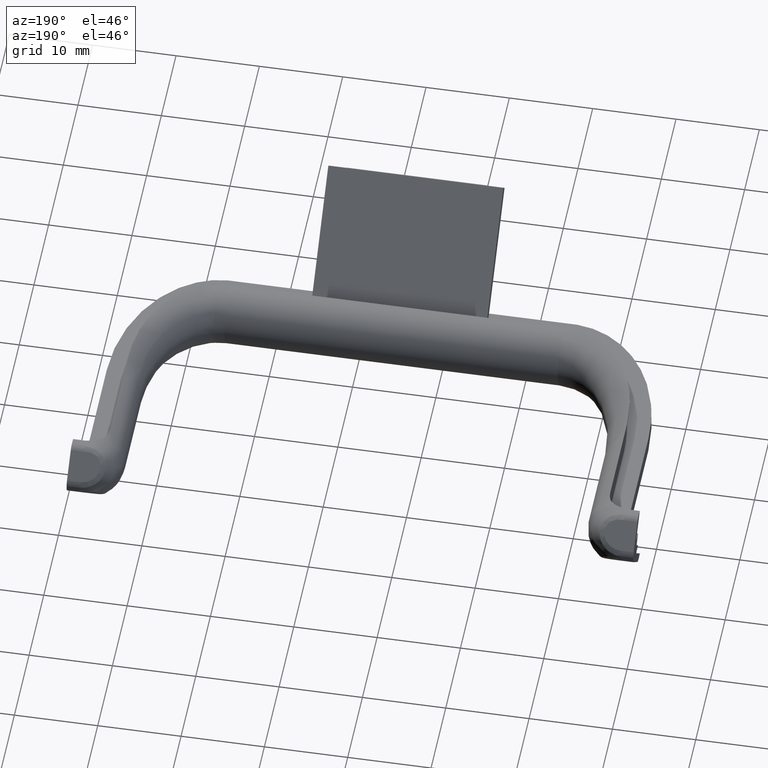
[diagram: clean part render]
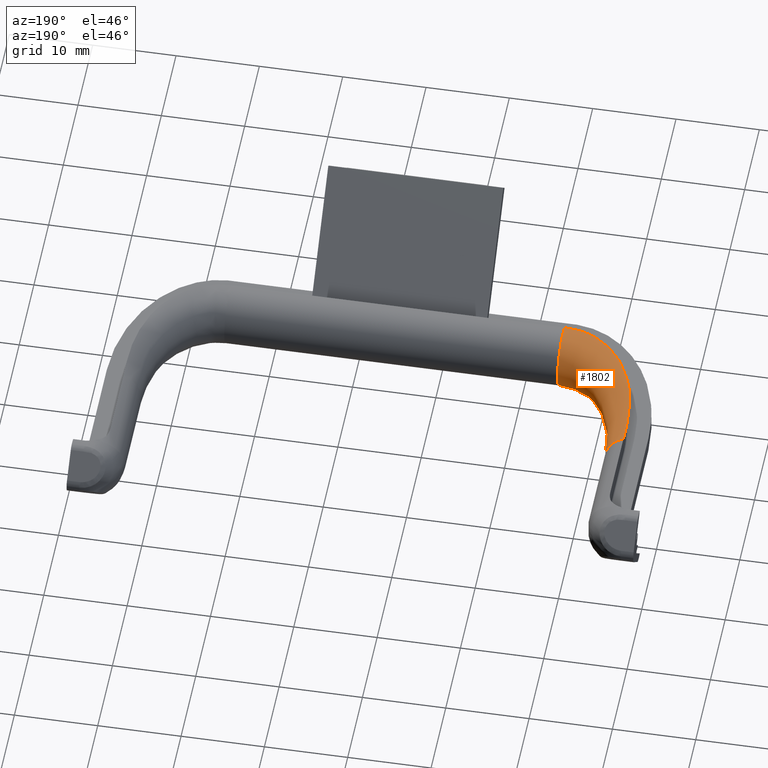
[diagram: same view with one face highlighted and labeled with its STEP entity id]
A machine part, auxiliary view. The second image highlights one B-rep face of the part: STEP entity #1802.
In plain terms, the highlighted face is a freeform B-spline surface patch.
Its self-contained STEP definition (entity closure, byte-faithful):
#25=B_SPLINE_CURVE_WITH_KNOTS('',3,(#3183,#3184,#3185,#3186,#3187,#3188,
#3189,#3190,#3191,#3192),.UNSPECIFIED.,.F.,.F.,(4,2,2,2,4),(-2.20345509162317,
-1.83863532768083,-1.48197378239805,-0.838537074408302,-0.24585927184166),
 .UNSPECIFIED.);
#27=B_SPLINE_CURVE_WITH_KNOTS('',3,(#3220,#3221,#3222,#3223),
 .UNSPECIFIED.,.F.,.F.,(4,4),(-0.262200994091899,0.),.UNSPECIFIED.);
#44=B_SPLINE_CURVE_WITH_KNOTS('',3,(#3621,#3622,#3623,#3624),
 .UNSPECIFIED.,.F.,.F.,(4,4),(-0.910281312693803,-0.698614414613447),
 .UNSPECIFIED.);
#46=B_SPLINE_CURVE_WITH_KNOTS('',3,(#3652,#3653,#3654,#3655,#3656,#3657,
#3658,#3659,#3660,#3661,#3662,#3663),.UNSPECIFIED.,.F.,.F.,(4,2,2,2,2,4),
(-1.73368814125414,-1.54589514440079,-1.12157386066874,-0.65030867246576,
-0.29982790780457,-9.08036690283609E-9),.UNSPECIFIED.);
#51=B_SPLINE_CURVE_WITH_KNOTS('',3,(#3788,#3789,#3790,#3791),
 .UNSPECIFIED.,.F.,.F.,(4,4),(-0.135563845027865,-8.71576399210524E-33),
 .UNSPECIFIED.);
#52=B_SPLINE_CURVE_WITH_KNOTS('',3,(#3794,#3795,#3796,#3797),
 .UNSPECIFIED.,.F.,.F.,(4,4),(-0.135346658001722,-8.71576399210524E-33),
 .UNSPECIFIED.);
#67=B_SPLINE_SURFACE_WITH_KNOTS('',3,3,((#3727,#3728,#3729,#3730,#3731,
#3732),(#3733,#3734,#3735,#3736,#3737,#3738),(#3739,#3740,#3741,#3742,#3743,
#3744),(#3745,#3746,#3747,#3748,#3749,#3750),(#3751,#3752,#3753,#3754,#3755,
#3756),(#3757,#3758,#3759,#3760,#3761,#3762),(#3763,#3764,#3765,#3766,#3767,
#3768),(#3769,#3770,#3771,#3772,#3773,#3774),(#3775,#3776,#3777,#3778,#3779,
#3780),(#3781,#3782,#3783,#3784,#3785,#3786)),.UNSPECIFIED.,.F.,.F.,.F.,
(4,1,1,1,1,1,1,4),(4,1,1,4),(-3.68894012902673,-3.16194868202291,-2.63495723501909,
-2.10796578801527,-1.58097434101145,-1.05398289400764,-0.526991447003818,
0.),(-1.5707963267949,-0.897597901025658,-0.448798950512829,-8.71576399210524E-33),
 .UNSPECIFIED.);
#209=FACE_OUTER_BOUND('',#313,.T.);
#313=EDGE_LOOP('',(#1542,#1543,#1544,#1545,#1546,#1547,#1548,#1549));
#712=CIRCLE('',#1989,3.7);
#713=CIRCLE('',#1990,3.7);
#825=VERTEX_POINT('',#3180);
#826=VERTEX_POINT('',#3182);
#828=VERTEX_POINT('',#3218);
#855=VERTEX_POINT('',#3618);
#856=VERTEX_POINT('',#3620);
#858=VERTEX_POINT('',#3629);
#864=VERTEX_POINT('',#3787);
#865=VERTEX_POINT('',#3792);
#1028=EDGE_CURVE('',#826,#825,#25,.T.);
#1032=EDGE_CURVE('',#825,#828,#27,.T.);
#1088=EDGE_CURVE('',#856,#855,#44,.T.);
#1092=EDGE_CURVE('',#855,#858,#46,.T.);
#1102=EDGE_CURVE('',#856,#828,#712,.T.);
#1103=EDGE_CURVE('',#858,#864,#51,.T.);
#1104=EDGE_CURVE('',#864,#865,#713,.T.);
#1105=EDGE_CURVE('',#826,#865,#52,.T.);
#1542=ORIENTED_EDGE('',*,*,#1088,.T.);
#1543=ORIENTED_EDGE('',*,*,#1092,.T.);
#1544=ORIENTED_EDGE('',*,*,#1103,.T.);
#1545=ORIENTED_EDGE('',*,*,#1104,.T.);
#1546=ORIENTED_EDGE('',*,*,#1105,.F.);
#1547=ORIENTED_EDGE('',*,*,#1028,.T.);
#1548=ORIENTED_EDGE('',*,*,#1032,.T.);
#1549=ORIENTED_EDGE('',*,*,#1102,.F.);
#1802=ADVANCED_FACE('',(#209),#67,.T.);
#1989=AXIS2_PLACEMENT_3D('',#3726,#2394,#2395);
#1990=AXIS2_PLACEMENT_3D('',#3793,#2396,#2397);
#2394=DIRECTION('center_axis',(0.,1.,-2.77555756156289E-16));
#2395=DIRECTION('ref_axis',(-0.270270270270257,2.67226378121049E-16,0.962784493543619));
#2396=DIRECTION('center_axis',(-1.,-3.86673217053726E-15,-2.77555756156289E-16));
#2397=DIRECTION('ref_axis',(7.77836370672753E-16,-0.270270270270257,0.962784493543619));
#3180=CARTESIAN_POINT('',(3.99999999999991,17.3542978045051,-3.44469206871838));
#3182=CARTESIAN_POINT('',(12.1778834393138,3.33130042737426,-3.5623026276111));
#3183=CARTESIAN_POINT('Ctrl Pts',(12.1778834400721,3.33130043045418,-3.56230262743489));
#3184=CARTESIAN_POINT('Ctrl Pts',(11.1986335254465,3.57323218997184,-3.57700630128459));
#3185=CARTESIAN_POINT('Ctrl Pts',(10.2833942419711,4.00183379716354,-3.6019456250735));
#3186=CARTESIAN_POINT('Ctrl Pts',(8.64057337531357,5.13983239742807,-3.65015910262434));
#3187=CARTESIAN_POINT('Ctrl Pts',(7.92621542084954,5.83055043952677,-3.67240558031309));
#3188=CARTESIAN_POINT('Ctrl Pts',(6.19399891204482,7.99918089738518,-3.70965557539282));
#3189=CARTESIAN_POINT('Ctrl Pts',(5.34212444434008,9.72595935080157,-3.70371660033781));
#3190=CARTESIAN_POINT('Ctrl Pts',(4.26137101362648,13.4567023109593,-3.61369490081654));
#3191=CARTESIAN_POINT('Ctrl Pts',(3.9999999999999,15.3931109063672,-3.53867528593425));
#3192=CARTESIAN_POINT('Ctrl Pts',(3.99999999999991,17.3542978045051,-3.44469206871839));
#3218=CARTESIAN_POINT('',(3.99999999999992,19.7989898732234,-3.38230690505755));
#3220=CARTESIAN_POINT('Ctrl Pts',(3.99999999999991,17.3542978045051,-3.44469206871838));
#3221=CARTESIAN_POINT('Ctrl Pts',(3.99999999999992,18.1227334682475,-3.40786740097739));
#3222=CARTESIAN_POINT('Ctrl Pts',(3.99999999999992,18.9249865595838,-3.38230690505755));
#3223=CARTESIAN_POINT('Ctrl Pts',(3.99999999999992,19.7989898732234,-3.38230690505755));
#3618=CARTESIAN_POINT('',(3.99999999999991,17.3542978045051,3.44469206871838));
#3620=CARTESIAN_POINT('',(3.99999999999992,19.7989898732234,3.38230690505755));
#3621=CARTESIAN_POINT('Ctrl Pts',(3.99999999999992,19.7989898732234,3.38230690505755));
#3622=CARTESIAN_POINT('Ctrl Pts',(3.99999999999992,18.9716895595571,3.38230690505755));
#3623=CARTESIAN_POINT('Ctrl Pts',(3.99999999999992,18.1857769606949,3.40484625584821));
#3624=CARTESIAN_POINT('Ctrl Pts',(3.99999999999991,17.3542978045051,3.44469206871838));
#3629=CARTESIAN_POINT('',(12.1778834393138,3.33130042737426,3.5623026276111));
#3652=CARTESIAN_POINT('Ctrl Pts',(3.99999999999991,17.3542978045051,3.44469206871838));
#3653=CARTESIAN_POINT('Ctrl Pts',(3.99999999999991,16.7212207836896,3.47503013349852));
#3654=CARTESIAN_POINT('Ctrl Pts',(4.02724264638256,16.0883965593003,3.50352874120962));
#3655=CARTESIAN_POINT('Ctrl Pts',(4.2063160888231,14.0400033543509,3.58876538001693));
#3656=CARTESIAN_POINT('Ctrl Pts',(4.47392970033359,12.6189070372899,3.63670824502519));
#3657=CARTESIAN_POINT('Ctrl Pts',(5.37929447111854,9.75159337818763,3.69895974681059));
#3658=CARTESIAN_POINT('Ctrl Pts',(6.06405761451874,8.29097680891748,3.70809257898597));
#3659=CARTESIAN_POINT('Ctrl Pts',(7.6856057863698,6.06772513339906,3.67976321075816));
#3660=CARTESIAN_POINT('Ctrl Pts',(8.51159343089714,5.22485957094658,3.65390529461991));
#3661=CARTESIAN_POINT('Ctrl Pts',(10.3002724948104,3.99393284579981,3.60148460473291));
#3662=CARTESIAN_POINT('Ctrl Pts',(11.2077326765471,3.57098416972389,3.57686967533437));
#3663=CARTESIAN_POINT('Ctrl Pts',(12.1778834400721,3.33130043045418,3.56230262743489));
#3726=CARTESIAN_POINT('Origin',(2.49999999999991,19.7989898732235,0.));
#3727=CARTESIAN_POINT('Ctrl Pts',(1.49999999999996,19.7989898732235,-3.56230262611139));
#3728=CARTESIAN_POINT('Ctrl Pts',(1.49999999999995,16.2288160836319,-3.56230262611139));
#3729=CARTESIAN_POINT('Ctrl Pts',(2.94107453607121,10.2949171795622,-3.56230262611139));
#3730=CARTESIAN_POINT('Ctrl Pts',(7.97403715070685,4.50328462973627,-3.56230262611139));
#3731=CARTESIAN_POINT('Ctrl Pts',(11.9750888627955,3.15685424949248,-3.56230262611139));
#3732=CARTESIAN_POINT('Ctrl Pts',(13.9999999999999,3.15685424949248,-3.56230262611139));
#3733=CARTESIAN_POINT('Ctrl Pts',(2.12576767186661,19.7989898732235,-3.73796644177932));
#3734=CARTESIAN_POINT('Ctrl Pts',(2.1257676718666,16.3280458469222,-3.73796644177932));
#3735=CARTESIAN_POINT('Ctrl Pts',(3.53358173957915,10.5601386361499,-3.73796644177932));
#3736=CARTESIAN_POINT('Ctrl Pts',(8.36011011774754,5.03392639744021,-3.73796644177932));
#3737=CARTESIAN_POINT('Ctrl Pts',(12.1073952138492,3.78262192135913,-3.73796644177932));
#3738=CARTESIAN_POINT('Ctrl Pts',(13.9999999999999,3.78262192135913,-3.73796644177932));
#3739=CARTESIAN_POINT('Ctrl Pts',(3.47128566035619,19.7989898732234,-3.7521272663309));
#3740=CARTESIAN_POINT('Ctrl Pts',(3.47128566035618,16.5416272448701,-3.7521272663309));
#3741=CARTESIAN_POINT('Ctrl Pts',(4.80786384436091,11.1301859455156,-3.7521272663309));
#3742=CARTESIAN_POINT('Ctrl Pts',(9.19024824301014,6.17510582698214,-3.7521272663309));
#3743=CARTESIAN_POINT('Ctrl Pts',(12.3921704111131,5.12813990984872,-3.7521272663309));
#3744=CARTESIAN_POINT('Ctrl Pts',(13.9999999999999,5.12813990984872,-3.7521272663309));
#3745=CARTESIAN_POINT('Ctrl Pts',(5.22635169651898,19.7989898732234,-2.75428429992495));
#3746=CARTESIAN_POINT('Ctrl Pts',(5.22635169651897,16.8201001422637,-2.75428429992495));
#3747=CARTESIAN_POINT('Ctrl Pts',(6.46985966062608,11.8738675664535,-2.75428429992495));
#3748=CARTESIAN_POINT('Ctrl Pts',(10.273058633043,7.66352870430828,-2.75428429992495));
#3749=CARTESIAN_POINT('Ctrl Pts',(12.7634676076378,6.8832059460115,-2.75428429992495));
#3750=CARTESIAN_POINT('Ctrl Pts',(13.9999999999999,6.8832059460115,-2.75428429992495));
#3751=CARTESIAN_POINT('Ctrl Pts',(6.24229254207204,19.7989898732234,-1.00937675148083));
#3752=CARTESIAN_POINT('Ctrl Pts',(6.24229254207202,16.9812504526206,-1.00937675148083));
#3753=CARTESIAN_POINT('Ctrl Pts',(7.43186542212486,12.3044056707277,-1.00937675148083));
#3754=CARTESIAN_POINT('Ctrl Pts',(10.899854420815,8.52507698650025,-1.00937675148083));
#3755=CARTESIAN_POINT('Ctrl Pts',(12.9783346881137,7.89914679156456,-1.00937675148083));
#3756=CARTESIAN_POINT('Ctrl Pts',(13.9999999999999,7.89914679156456,-1.00937675148083));
#3757=CARTESIAN_POINT('Ctrl Pts',(6.24156138887466,19.7989898732235,1.00924038491529));
#3758=CARTESIAN_POINT('Ctrl Pts',(6.24156138887465,16.9812510532,1.00924038491529));
#3759=CARTESIAN_POINT('Ctrl Pts',(7.43132248283308,12.3039739974405,1.00924038491529));
#3760=CARTESIAN_POINT('Ctrl Pts',(10.8994079942425,8.52456351704602,1.00924038491529));
#3761=CARTESIAN_POINT('Ctrl Pts',(12.9783354888862,7.89841563836719,1.00924038491529));
#3762=CARTESIAN_POINT('Ctrl Pts',(13.9999999999999,7.89841563836719,1.00924038491529));
#3763=CARTESIAN_POINT('Ctrl Pts',(5.22704547928162,19.7989898732234,2.75490098330544));
#3764=CARTESIAN_POINT('Ctrl Pts',(5.22704547928161,16.8201029936477,2.75490098330544));
#3765=CARTESIAN_POINT('Ctrl Pts',(6.47037923387269,11.8742736009931,2.75490098330544));
#3766=CARTESIAN_POINT('Ctrl Pts',(10.2734823789706,7.66401905708466,2.75490098330544));
#3767=CARTESIAN_POINT('Ctrl Pts',(12.7634714094832,6.88389972877415,2.75490098330544));
#3768=CARTESIAN_POINT('Ctrl Pts',(13.9999999999999,6.88389972877415,2.75490098330544));
#3769=CARTESIAN_POINT('Ctrl Pts',(3.4709964610367,19.7989898732235,3.75168175320978));
#3770=CARTESIAN_POINT('Ctrl Pts',(3.47099646103669,16.5416465113255,3.75168175320978));
#3771=CARTESIAN_POINT('Ctrl Pts',(4.80767347709204,11.1299953168779,3.75168175320978));
#3772=CARTESIAN_POINT('Ctrl Pts',(9.19007242575462,6.1749201254489,3.75168175320978));
#3773=CARTESIAN_POINT('Ctrl Pts',(12.3921960997202,5.12785071052923,3.75168175320978));
#3774=CARTESIAN_POINT('Ctrl Pts',(13.9999999999999,5.12785071052923,3.75168175320978));
#3775=CARTESIAN_POINT('Ctrl Pts',(2.12576767186661,19.7989898732235,3.73796644177932));
#3776=CARTESIAN_POINT('Ctrl Pts',(2.12576767186659,16.3280281625142,3.73796644177932));
#3777=CARTESIAN_POINT('Ctrl Pts',(3.5335590764111,10.5601571163395,3.73796644177932));
#3778=CARTESIAN_POINT('Ctrl Pts',(8.36010940987458,5.03391023106269,3.73796644177932));
#3779=CARTESIAN_POINT('Ctrl Pts',(12.1073716346386,3.78262192135913,3.73796644177932));
#3780=CARTESIAN_POINT('Ctrl Pts',(13.9999999999999,3.78262192135913,3.73796644177932));
#3781=CARTESIAN_POINT('Ctrl Pts',(1.49999999999996,19.7989898732235,3.56230262611139));
#3782=CARTESIAN_POINT('Ctrl Pts',(1.49999999999995,16.2288160836319,3.56230262611139));
#3783=CARTESIAN_POINT('Ctrl Pts',(2.94107453607121,10.2949171795622,3.56230262611139));
#3784=CARTESIAN_POINT('Ctrl Pts',(7.97403715070685,4.50328462973627,3.56230262611139));
#3785=CARTESIAN_POINT('Ctrl Pts',(11.9750888627955,3.15685424949248,3.56230262611139));
#3786=CARTESIAN_POINT('Ctrl Pts',(13.9999999999999,3.15685424949248,3.56230262611139));
#3787=CARTESIAN_POINT('',(13.9999999999999,3.15685424949249,3.56230262611139));
#3788=CARTESIAN_POINT('Ctrl Pts',(12.1788253451397,3.33609801278891,3.56230262611139));
#3789=CARTESIAN_POINT('Ctrl Pts',(12.7789388931185,3.21827823579732,3.56230262611139));
#3790=CARTESIAN_POINT('Ctrl Pts',(13.3883569930688,3.15685424949248,3.56230262611139));
#3791=CARTESIAN_POINT('Ctrl Pts',(13.9999999999999,3.15685424949248,3.56230262611139));
#3792=CARTESIAN_POINT('',(13.9999999999999,3.15685424949249,-3.56230262611139));
#3793=CARTESIAN_POINT('Origin',(13.9999999999999,4.15685424949244,0.));
#3794=CARTESIAN_POINT('Ctrl Pts',(12.1778834390212,3.3313004258552,-3.56230262611139));
#3795=CARTESIAN_POINT('Ctrl Pts',(12.7787415516386,3.21558326658746,-3.56230262611139));
#3796=CARTESIAN_POINT('Ctrl Pts',(13.3893369071876,3.15685424949248,-3.56230262611139));
#3797=CARTESIAN_POINT('Ctrl Pts',(13.9999999999999,3.15685424949248,-3.56230262611139));